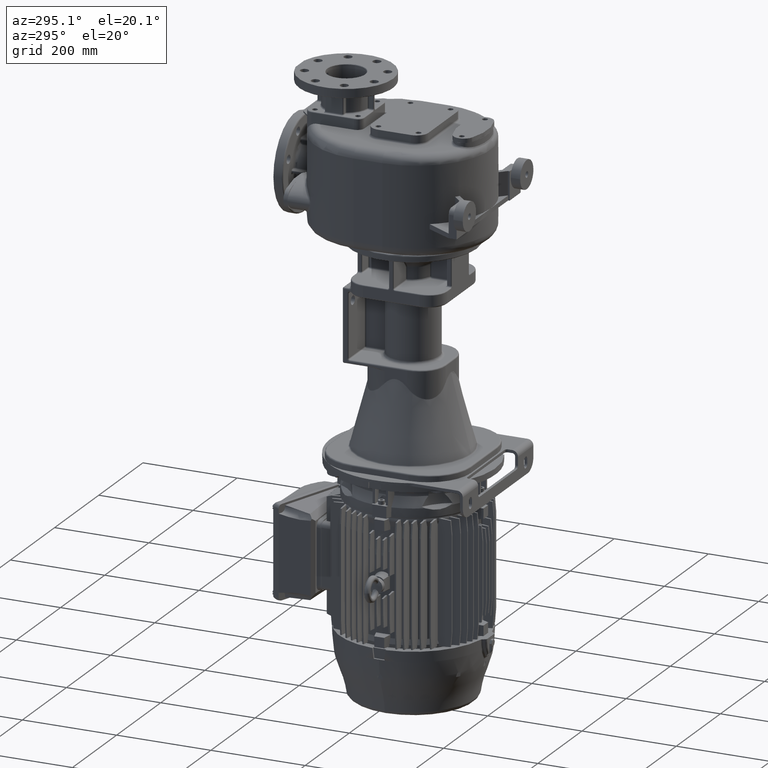
[diagram: clean part render]
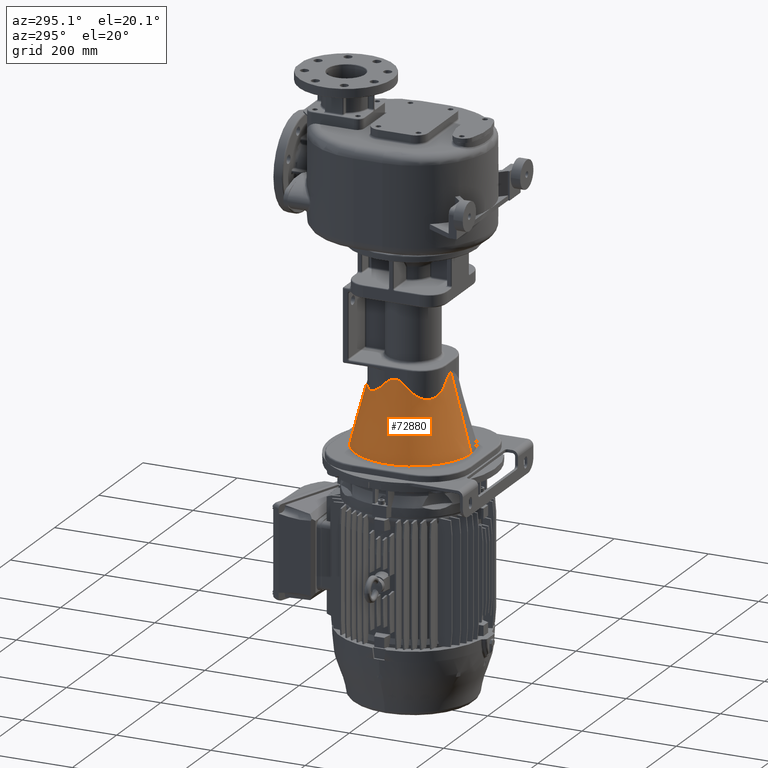
[diagram: same view with one face highlighted and labeled with its STEP entity id]
A machine part, auxiliary view. The second image highlights one B-rep face of the part: STEP entity #72880.
In plain terms, the highlighted conical surface has half-angle 15 deg.
Its self-contained STEP definition (entity closure, byte-faithful):
#14174=CARTESIAN_POINT('',(-1.898481759786E-14,1.58E2,-5.362764571353E2));
#14175=DIRECTION('',(0.E0,0.E0,1.E0));
#14176=DIRECTION('',(0.E0,1.E0,0.E0));
#14177=AXIS2_PLACEMENT_3D('',#14174,#14175,#14176);
#14199=CARTESIAN_POINT('',(-2.319506396795E1,2.382162628892E2,
-3.900399315816E2));
#14200=CARTESIAN_POINT('',(-2.288359843524E1,2.382133862913E2,
-3.897067289652E2));
#14201=CARTESIAN_POINT('',(-2.226863818762E1,2.382077949752E2,
-3.890611301452E2));
#14202=CARTESIAN_POINT('',(-2.137324140061E1,2.381999076037E2,
-3.881557259198E2));
#14203=CARTESIAN_POINT('',(-2.050004827563E1,2.381924639235E2,
-3.873058945816E2));
#14204=CARTESIAN_POINT('',(-1.964856931572E1,2.381854481215E2,
-3.865090249327E2));
#14205=CARTESIAN_POINT('',(-1.881811140830E1,2.381788423423E2,
-3.857623363366E2));
#14206=CARTESIAN_POINT('',(-1.800717068037E1,2.381726229245E2,
-3.850625046679E2));
#14207=CARTESIAN_POINT('',(-1.721497222698E1,2.381667727279E2,
-3.844070239507E2));
#14208=CARTESIAN_POINT('',(-1.644044440832E1,2.381612729392E2,
-3.837932733923E2));
#14209=CARTESIAN_POINT('',(-1.568268036622E1,2.381561068390E2,
-3.832189200329E2));
#14210=CARTESIAN_POINT('',(-1.494077587742E1,2.381512583241E2,
-3.826817647559E2));
#14211=CARTESIAN_POINT('',(-1.421386435068E1,2.381467122225E2,
-3.821797665888E2));
#14212=CARTESIAN_POINT('',(-1.350111279407E1,2.381424542442E2,
-3.817110299790E2));
#14213=CARTESIAN_POINT('',(-1.280171576460E1,2.381384709455E2,
-3.812737936328E2));
#14214=CARTESIAN_POINT('',(-1.211489612808E1,2.381347497236E2,
-3.808664241492E2));
#14215=CARTESIAN_POINT('',(-1.143990248715E1,2.381312788052E2,
-3.804874079932E2));
#14216=CARTESIAN_POINT('',(-1.077600792648E1,2.381280471918E2,
-3.801353446267E2));
#14217=CARTESIAN_POINT('',(-1.012250753635E1,2.381250446008E2,
-3.798089394529E2));
#14218=CARTESIAN_POINT('',(-9.478717047004E0,2.381222614602E2,
-3.795069980713E2));
#14219=CARTESIAN_POINT('',(-8.843971320528E0,2.381196888903E2,
-3.792284208210E2));
#14220=CARTESIAN_POINT('',(-8.217622980454E0,2.381173186852E2,
-3.789721977943E2));
#14221=CARTESIAN_POINT('',(-7.599041007339E0,2.381151433015E2,
-3.787374042576E2));
#14222=CARTESIAN_POINT('',(-6.987610053464E0,2.381131558013E2,
-3.785231965037E2));
#14223=CARTESIAN_POINT('',(-6.382728527639E0,2.381113498234E2,
-3.783288077016E2));
#14224=CARTESIAN_POINT('',(-5.783807710785E0,2.381097195894E2,
-3.781535446081E2));
#14225=CARTESIAN_POINT('',(-5.190269569580E0,2.381082598860E2,
-3.779967841122E2));
#14226=CARTESIAN_POINT('',(-4.601547002465E0,2.381069660589E2,
-3.778579709856E2));
#14227=CARTESIAN_POINT('',(-4.017084441945E0,2.381058339966E2,
-3.777366151512E2));
#14228=CARTESIAN_POINT('',(-3.436319602494E0,2.381048601029E2,
-3.776322874809E2));
#14229=CARTESIAN_POINT('',(-2.858749675769E0,2.381040413066E2,
-3.775446265706E2));
#14230=CARTESIAN_POINT('',(-2.283741555911E0,2.381033748430E2,
-3.774733127190E2));
#14231=CARTESIAN_POINT('',(-1.710935328616E0,2.381028588049E2,
-3.774181163803E2));
#14232=CARTESIAN_POINT('',(-1.139637366500E0,2.381024912630E2,
-3.773788219682E2));
#14233=CARTESIAN_POINT('',(-5.691455433550E-1,2.381022712380E2,
-3.773553004476E2));
#14234=CARTESIAN_POINT('',(-1.896066888669E-1,2.381022225310E2,
-3.773500950132E2));
#14235=CARTESIAN_POINT('',(-3.750284373163E-14,2.381022225205E2,
-3.773500949365E2));
#14237=CARTESIAN_POINT('',(-8.021626288916E1,1.811950639680E2,
-3.900399315817E2));
#14238=CARTESIAN_POINT('',(-8.021999475137E1,1.815991386036E2,
-3.904722062734E2));
#14239=CARTESIAN_POINT('',(-8.021874098262E1,1.824025072191E2,
-3.913206516273E2));
#14240=CARTESIAN_POINT('',(-8.019169096466E1,1.835915514832E2,
-3.925448786536E2));
#14241=CARTESIAN_POINT('',(-8.014043502414E1,1.847648923943E2,
-3.937225575458E2));
#14242=CARTESIAN_POINT('',(-8.006591372383E1,1.859221126280E2,
-3.948547530877E2));
#14243=CARTESIAN_POINT('',(-7.996906092865E1,1.870629094875E2,
-3.959426080158E2));
#14244=CARTESIAN_POINT('',(-7.985076686371E1,1.881872409590E2,
-3.969874556058E2));
#14245=CARTESIAN_POINT('',(-7.971190654323E1,1.892949614296E2,
-3.979904709308E2));
#14246=CARTESIAN_POINT('',(-7.955332194693E1,1.903860279218E2,
-3.989528692945E2));
#14247=CARTESIAN_POINT('',(-7.937582728284E1,1.914604184036E2,
-3.998758287319E2));
#14248=CARTESIAN_POINT('',(-7.918020743302E1,1.925181457721E2,
-4.007605048759E2));
#14249=CARTESIAN_POINT('',(-7.896721672202E1,1.935592564187E2,
-4.016080298810E2));
#14250=CARTESIAN_POINT('',(-7.873757912815E1,1.945838246107E2,
-4.024195085420E2));
#14251=CARTESIAN_POINT('',(-7.849198753309E1,1.955919522879E2,
-4.031960188631E2));
#14252=CARTESIAN_POINT('',(-7.823110376669E1,1.965837655055E2,
-4.039386098971E2));
#14253=CARTESIAN_POINT('',(-7.795555850643E1,1.975594129254E2,
-4.046483018131E2));
#14254=CARTESIAN_POINT('',(-7.766595128989E1,1.985190636491E2,
-4.053260850308E2));
#14255=CARTESIAN_POINT('',(-7.736285062766E1,1.994629052158E2,
-4.059729196012E2));
#14256=CARTESIAN_POINT('',(-7.704679418406E1,2.003911417136E2,
-4.065897347049E2));
#14257=CARTESIAN_POINT('',(-7.671828912981E1,2.013039916542E2,
-4.071774279835E2));
#14258=CARTESIAN_POINT('',(-7.637781260497E1,2.022016860136E2,
-4.077368651744E2));
#14259=CARTESIAN_POINT('',(-7.602581202268E1,2.030844669726E2,
-4.082688802583E2));
#14260=CARTESIAN_POINT('',(-7.566270553545E1,2.039525862448E2,
-4.087742751848E2));
#14261=CARTESIAN_POINT('',(-7.528888254091E1,2.048063035476E2,
-4.092538197483E2));
#14262=CARTESIAN_POINT('',(-7.490470419167E1,2.056458851990E2,
-4.097082515238E2));
#14263=CARTESIAN_POINT('',(-7.451050416814E1,2.064716023528E2,
-4.101382756973E2));
#14264=CARTESIAN_POINT('',(-7.410658931007E1,2.072837297805E2,
-4.105445652939E2));
#14265=CARTESIAN_POINT('',(-7.369324007978E1,2.080825449547E2,
-4.109277613753E2));
#14266=CARTESIAN_POINT('',(-7.327071123717E1,2.088683267991E2,
-4.112884730981E2));
#14267=CARTESIAN_POINT('',(-7.283923248650E1,2.096413546020E2,
-4.116272778687E2));
#14268=CARTESIAN_POINT('',(-7.239900906018E1,2.104019070709E2,
-4.119447214972E2));
#14269=CARTESIAN_POINT('',(-7.195022273367E1,2.111502608655E2,
-4.122413183860E2));
#14270=CARTESIAN_POINT('',(-7.149303232423E1,2.118866900134E2,
-4.125175519192E2));
#14271=CARTESIAN_POINT('',(-7.102757426105E1,2.126114651239E2,
-4.127738745976E2));
#14272=CARTESIAN_POINT('',(-7.055396319336E1,2.133248526369E2,
-4.130107082967E2));
#14273=CARTESIAN_POINT('',(-7.007229264585E1,2.140271140120E2,
-4.132284444684E2));
#14274=CARTESIAN_POINT('',(-6.958263580989E1,2.147185047501E2,
-4.134274442559E2));
#14275=CARTESIAN_POINT('',(-6.908504620454E1,2.153992738217E2,
-4.136080390797E2));
#14276=CARTESIAN_POINT('',(-6.857955829681E1,2.160696629492E2,
-4.137705307193E2));
#14277=CARTESIAN_POINT('',(-6.806618784281E1,2.167299062769E2,
-4.139151914908E2));
#14278=CARTESIAN_POINT('',(-6.754493259091E1,2.173802295998E2,
-4.140422644003E2));
#14279=CARTESIAN_POINT('',(-6.701577296307E1,2.180208496597E2,
-4.141519633128E2));
#14280=CARTESIAN_POINT('',(-6.647867249737E1,2.186519737237E2,
-4.142444731146E2));
#14281=CARTESIAN_POINT('',(-6.593357867287E1,2.192737988827E2,
-4.143199502163E2));
#14282=CARTESIAN_POINT('',(-6.538042319653E1,2.198865117125E2,
-4.143785224372E2));
#14283=CARTESIAN_POINT('',(-6.481912245120E1,2.204902878075E2,
-4.144202890442E2));
#14284=CARTESIAN_POINT('',(-6.424957809330E1,2.210852911747E2,
-4.144453208211E2));
#14285=CARTESIAN_POINT('',(-6.367167767166E1,2.216716736184E2,
-4.144536601243E2));
#14286=CARTESIAN_POINT('',(-6.308529513272E1,2.222495742511E2,
-4.144453209345E2));
#14287=CARTESIAN_POINT('',(-6.249029148922E1,2.228191189817E2,
-4.144202892519E2));
#14288=CARTESIAN_POINT('',(-6.188651487526E1,2.233804203052E2,
-4.143785227047E2));
#14289=CARTESIAN_POINT('',(-6.127380142482E1,2.239335764177E2,
-4.143199504999E2));
#14290=CARTESIAN_POINT('',(-6.065197570906E1,2.244786707867E2,
-4.142444733834E2));
#14291=CARTESIAN_POINT('',(-6.002085108892E1,2.250157717696E2,
-4.141519635453E2));
#14292=CARTESIAN_POINT('',(-5.938023054358E1,2.255449318268E2,
-4.140422645767E2));
#14293=CARTESIAN_POINT('',(-5.872990670252E1,2.260661875115E2,
-4.139151915840E2));
#14294=CARTESIAN_POINT('',(-5.806966279401E1,2.265795584206E2,
-4.137705306891E2));
#14295=CARTESIAN_POINT('',(-5.739927310853E1,2.270850467374E2,
-4.136080389013E2));
#14296=CARTESIAN_POINT('',(-5.671850355743E1,2.275826366713E2,
-4.134274439287E2));
#14297=CARTESIAN_POINT('',(-5.602711234452E1,2.280722938113E2,
-4.132284439732E2));
#14298=CARTESIAN_POINT('',(-5.532485051909E1,2.285539646257E2,
-4.130107076195E2));
#14299=CARTESIAN_POINT('',(-5.461146248572E1,2.290275759875E2,
-4.127738736970E2));
#14300=CARTESIAN_POINT('',(-5.388668686926E1,2.294930343128E2,
-4.125175507766E2));
#14301=CARTESIAN_POINT('',(-5.315025726996E1,2.299502249305E2,
-4.122413170017E2));
#14302=CARTESIAN_POINT('',(-5.240190303337E1,2.303990114421E2,
-4.119447198577E2));
#14303=CARTESIAN_POINT('',(-5.164135011419E1,2.308392350402E2,
-4.116272759508E2));
#14304=CARTESIAN_POINT('',(-5.086832184648E1,2.312707139536E2,
-4.112884708793E2));
#14305=CARTESIAN_POINT('',(-5.008253957228E1,2.316932429215E2,
-4.109277588510E2));
#14306=CARTESIAN_POINT('',(-4.928372402950E1,2.321065922298E2,
-4.105445624777E2));
#14307=CARTESIAN_POINT('',(-4.847159627376E1,2.325105071324E2,
-4.101382725954E2));
#14308=CARTESIAN_POINT('',(-4.764587880689E1,2.329047071812E2,
-4.097082481309E2));
#14309=CARTESIAN_POINT('',(-4.680629688037E1,2.332888855270E2,
-4.092538160727E2));
#14310=CARTESIAN_POINT('',(-4.595257936008E1,2.336627084832E2,
-4.087742712478E2));
#14311=CARTESIAN_POINT('',(-4.508445991861E1,2.340258149046E2,
-4.082688760799E2));
#14312=CARTESIAN_POINT('',(-4.420167882855E1,2.343778154001E2,
-4.077368607707E2));
#14313=CARTESIAN_POINT('',(-4.330398438563E1,2.347182918158E2,
-4.071774233787E2));
#14314=CARTESIAN_POINT('',(-4.239113441321E1,2.350467967399E2,
-4.065897299289E2));
#14315=CARTESIAN_POINT('',(-4.146289791124E1,2.353628530435E2,
-4.059729146708E2));
#14316=CARTESIAN_POINT('',(-4.051905637518E1,2.356659535544E2,
-4.053260799685E2));
#14317=CARTESIAN_POINT('',(-3.955940577378E1,2.359555605939E2,
-4.046482966851E2));
#14318=CARTESIAN_POINT('',(-3.858375853649E1,2.362311056656E2,
-4.039386047516E2));
#14319=CARTESIAN_POINT('',(-3.759194551381E1,2.364919892473E2,
-4.031960137163E2));
#14320=CARTESIAN_POINT('',(-3.658381806420E1,2.367375806569E2,
-4.024195034262E2));
#14321=CARTESIAN_POINT('',(-3.555925023669E1,2.369672180438E2,
-4.016080249129E2));
#14322=CARTESIAN_POINT('',(-3.451814004773E1,2.371802085448E2,
-4.007605001489E2));
#14323=CARTESIAN_POINT('',(-3.346041308292E1,2.373758282111E2,
-3.998758242172E2));
#14324=CARTESIAN_POINT('',(-3.238602308430E1,2.375533226942E2,
-3.989528650794E2));
#14325=CARTESIAN_POINT('',(-3.129495724671E1,2.377119071047E2,
-3.979904671871E2));
#14326=CARTESIAN_POINT('',(-3.018723745919E1,2.378507672620E2,
-3.969874523891E2));
#14327=CARTESIAN_POINT('',(-2.906290674209E1,2.379690611850E2,
-3.959426054254E2));
#14328=CARTESIAN_POINT('',(-2.792211030136E1,2.380659138960E2,
-3.948547508389E2));
#14329=CARTESIAN_POINT('',(-2.676489032510E1,2.381404351324E2,
-3.937225554906E2));
#14330=CARTESIAN_POINT('',(-2.559155011324E1,2.381916910058E2,
-3.925448772561E2));
#14331=CARTESIAN_POINT('',(-2.440250643312E1,2.382187409866E2,
-3.913206507998E2));
#14332=CARTESIAN_POINT('',(-2.359913833066E1,2.382199947508E2,
-3.904722059849E2));
#14333=CARTESIAN_POINT('',(-2.319506396795E1,2.382162628892E2,
-3.900399315816E2));
#14335=CARTESIAN_POINT('',(-8.021626288916E1,1.348049360321E2,
-3.900399315817E2));
#14336=CARTESIAN_POINT('',(-8.021337708996E1,1.351173980457E2,
-3.897056629505E2));
#14337=CARTESIAN_POINT('',(-8.020776865407E1,1.357342738323E2,
-3.890580940221E2));
#14338=CARTESIAN_POINT('',(-8.019985970962E1,1.366322633176E2,
-3.881502322208E2));
#14339=CARTESIAN_POINT('',(-8.019239756696E1,1.375078495189E2,
-3.872983291904E2));
#14340=CARTESIAN_POINT('',(-8.018536823674E1,1.383612767892E2,
-3.864999695796E2));
#14341=CARTESIAN_POINT('',(-8.017875137900E1,1.391935056585E2,
-3.857520825888E2));
#14342=CARTESIAN_POINT('',(-8.017252416041E1,1.400059274145E2,
-3.850514202157E2));
#14343=CARTESIAN_POINT('',(-8.016666871228E1,1.407993763352E2,
-3.843953925218E2));
#14344=CARTESIAN_POINT('',(-8.016116586727E1,1.415749344889E2,
-3.837813451027E2));
#14345=CARTESIAN_POINT('',(-8.015599864105E1,1.423335201126E2,
-3.832069118934E2));
#14346=CARTESIAN_POINT('',(-8.015115068624E1,1.430760529973E2,
-3.826698605547E2));
#14347=CARTESIAN_POINT('',(-8.014660659167E1,1.438034122586E2,
-3.821681215398E2));
#14348=CARTESIAN_POINT('',(-8.014235183219E1,1.445164437082E2,
-3.816997727583E2));
#14349=CARTESIAN_POINT('',(-8.013837274469E1,1.452159644786E2,
-3.812630292559E2));
#14350=CARTESIAN_POINT('',(-8.013465653049E1,1.459027630240E2,
-3.808562361784E2));
#14351=CARTESIAN_POINT('',(-8.013119126653E1,1.465776007042E2,
-3.804778612094E2));
#14352=CARTESIAN_POINT('',(-8.012796579074E1,1.472412142771E2,
-3.801264865762E2));
#14353=CARTESIAN_POINT('',(-8.012496966900E1,1.478943180183E2,
-3.798008021824E2));
#14354=CARTESIAN_POINT('',(-8.012219319509E1,1.485376051961E2,
-3.794995996979E2));
#14355=CARTESIAN_POINT('',(-8.011962737517E1,1.491717495290E2,
-3.792217670196E2));
#14356=CARTESIAN_POINT('',(-8.011726392488E1,1.497974066966E2,
-3.789662831902E2));
#14357=CARTESIAN_POINT('',(-8.011509519420E1,1.504152146026E2,
-3.787322138831E2));
#14358=CARTESIAN_POINT('',(-8.011311413345E1,1.510257958103E2,
-3.785187065283E2));
#14359=CARTESIAN_POINT('',(-8.011131430379E1,1.516297589223E2,
-3.783249864897E2));
#14360=CARTESIAN_POINT('',(-8.010968986696E1,1.522276997439E2,
-3.781503535738E2));
#14361=CARTESIAN_POINT('',(-8.010823557243E1,1.528202024316E2,
-3.779941788510E2));
#14362=CARTESIAN_POINT('',(-8.010694675880E1,1.534078405823E2,
-3.778559018586E2));
#14363=CARTESIAN_POINT('',(-8.010581922861E1,1.539911777434E2,
-3.777350277208E2));
#14364=CARTESIAN_POINT('',(-8.010484929848E1,1.545707693603E2,
-3.776311248865E2));
#14365=CARTESIAN_POINT('',(-8.010403381357E1,1.551471637988E2,
-3.775438232905E2));
#14366=CARTESIAN_POINT('',(-8.010337013943E1,1.557209033432E2,
-3.774728126871E2));
#14367=CARTESIAN_POINT('',(-8.010285615574E1,1.562925251901E2,
-3.774178412505E2));
#14368=CARTESIAN_POINT('',(-8.010249025446E1,1.568625623614E2,
-3.773787144484E2));
#14369=CARTESIAN_POINT('',(-8.010227120782E1,1.574315446236E2,
-3.773552936624E2));
#14370=CARTESIAN_POINT('',(-8.010219827448E1,1.579999999012E2,
-3.773474959356E2));
#14371=CARTESIAN_POINT('',(-8.010227120786E1,1.585684551787E2,
-3.773552936573E2));
#14372=CARTESIAN_POINT('',(-8.010249025448E1,1.591374374406E2,
-3.773787144380E2));
#14373=CARTESIAN_POINT('',(-8.010285615557E1,1.597074746115E2,
-3.774178412341E2));
#14374=CARTESIAN_POINT('',(-8.010337013910E1,1.602790964577E2,
-3.774728126648E2));
#14375=CARTESIAN_POINT('',(-8.010403381324E1,1.608528360014E2,
-3.775438232627E2));
#14376=CARTESIAN_POINT('',(-8.010484929819E1,1.614292304387E2,
-3.776311248533E2));
#14377=CARTESIAN_POINT('',(-8.010581922833E1,1.620088220543E2,
-3.777350276820E2));
#14378=CARTESIAN_POINT('',(-8.010694675848E1,1.625921592138E2,
-3.778559018139E2));
#14379=CARTESIAN_POINT('',(-8.010823557191E1,1.631797973632E2,
-3.779941787997E2));
#14380=CARTESIAN_POINT('',(-8.010968986633E1,1.637723000492E2,
-3.781503535160E2));
#14381=CARTESIAN_POINT('',(-8.011131430316E1,1.643702408687E2,
-3.783249864255E2));
#14382=CARTESIAN_POINT('',(-8.011311413282E1,1.649742039783E2,
-3.785187064575E2));
#14383=CARTESIAN_POINT('',(-8.011509519353E1,1.655847851834E2,
-3.787322138053E2));
#14384=CARTESIAN_POINT('',(-8.011726392413E1,1.662025930866E2,
-3.789662831051E2));
#14385=CARTESIAN_POINT('',(-8.011962737427E1,1.668282502517E2,
-3.792217669267E2));
#14386=CARTESIAN_POINT('',(-8.012219319414E1,1.674623945816E2,
-3.794995995970E2));
#14387=CARTESIAN_POINT('',(-8.012496966801E1,1.681056817560E2,
-3.798008020733E2));
#14388=CARTESIAN_POINT('',(-8.012796578967E1,1.687587854934E2,
-3.801264864583E2));
#14389=CARTESIAN_POINT('',(-8.013119126535E1,1.694223990624E2,
-3.804778610822E2));
#14390=CARTESIAN_POINT('',(-8.013465652918E1,1.700972367387E2,
-3.808562360413E2));
#14391=CARTESIAN_POINT('',(-8.013837274336E1,1.707840352799E2,
-3.812630291090E2));
#14392=CARTESIAN_POINT('',(-8.014235183084E1,1.714835560456E2,
-3.816997726009E2));
#14393=CARTESIAN_POINT('',(-8.014660659021E1,1.721965874896E2,
-3.821681213706E2));
#14394=CARTESIAN_POINT('',(-8.015115068458E1,1.729239467456E2,
-3.826698603730E2));
#14395=CARTESIAN_POINT('',(-8.015599863917E1,1.736664796271E2,
-3.832069117003E2));
#14396=CARTESIAN_POINT('',(-8.016116586524E1,1.744250652477E2,
-3.837813448979E2));
#14397=CARTESIAN_POINT('',(-8.016666871044E1,1.752006233922E2,
-3.843953923020E2));
#14398=CARTESIAN_POINT('',(-8.017252415838E1,1.759940722887E2,
-3.850514199655E2));
#14399=CARTESIAN_POINT('',(-8.017875137715E1,1.768064940619E2,
-3.857520823445E2));
#14400=CARTESIAN_POINT('',(-8.018536823382E1,1.776387228629E2,
-3.864999692590E2));
#14401=CARTESIAN_POINT('',(-8.019239756507E1,1.784921502826E2,
-3.872983290008E2));
#14402=CARTESIAN_POINT('',(-8.019985970512E1,1.793677362291E2,
-3.881502317716E2));
#14403=CARTESIAN_POINT('',(-8.020776865E1,1.802657257542E2,-3.890580935917E2));
#14404=CARTESIAN_POINT('',(-8.021337708847E1,1.808826017835E2,
-3.897056627684E2));
#14405=CARTESIAN_POINT('',(-8.021626288916E1,1.811950639680E2,
-3.900399315817E2));
#14407=CARTESIAN_POINT('',(-2.319506396795E1,7.778373711082E1,
-3.900399315816E2));
#14408=CARTESIAN_POINT('',(-2.359913855122E1,7.778000524915E1,
-3.904722062173E2));
#14409=CARTESIAN_POINT('',(-2.440250705362E1,7.778125901627E1,
-3.913206514540E2));
#14410=CARTESIAN_POINT('',(-2.559155114193E1,7.780830902549E1,
-3.925448783056E2));
#14411=CARTESIAN_POINT('',(-2.676489181782E1,7.785956494504E1,
-3.937225569742E2));
#14412=CARTESIAN_POINT('',(-2.792211214043E1,7.793408623973E1,
-3.948547526164E2));
#14413=CARTESIAN_POINT('',(-2.906290894038E1,7.803093901964E1,
-3.959426074994E2));
#14414=CARTESIAN_POINT('',(-3.018724053435E1,7.814923308679E1,
-3.969874552170E2));
#14415=CARTESIAN_POINT('',(-3.129496095881E1,7.828809339344E1,
-3.979904705103E2));
#14416=CARTESIAN_POINT('',(-3.238602739166E1,7.844667797039E1,
-3.989528688343E2));
#14417=CARTESIAN_POINT('',(-3.346041793317E1,7.862417263453E1,
-3.998758283327E2));
#14418=CARTESIAN_POINT('',(-3.451814536721E1,7.881979248814E1,
-4.007605045416E2));
#14419=CARTESIAN_POINT('',(-3.555925596754E1,7.903278318190E1,
-4.016080295175E2));
#14420=CARTESIAN_POINT('',(-3.658382414399E1,7.926242076239E1,
-4.024195081781E2));
#14421=CARTESIAN_POINT('',(-3.759195188163E1,7.950801236353E1,
-4.031960185552E2));
#14422=CARTESIAN_POINT('',(-3.858376513256E1,7.976889613157E1,
-4.039386096219E2));
#14423=CARTESIAN_POINT('',(-3.955941254026E1,8.004444138123E1,
-4.046483015369E2));
#14424=CARTESIAN_POINT('',(-4.051906325605E1,8.033404858771E1,
-4.053260847570E2));
#14425=CARTESIAN_POINT('',(-4.146290485217E1,8.063714925191E1,
-4.059729193559E2));
#14426=CARTESIAN_POINT('',(-4.239114136218E1,8.095320569291E1,
-4.065897344751E2));
#14427=CARTESIAN_POINT('',(-4.330399129189E1,8.128171073635E1,
-4.071774277540E2));
#14428=CARTESIAN_POINT('',(-4.420168564381E1,8.162218725123E1,
-4.077368649477E2));
#14429=CARTESIAN_POINT('',(-4.508446659685E1,8.197418782395E1,
-4.082688800356E2));
#14430=CARTESIAN_POINT('',(-4.595258585780E1,8.233729429902E1,
-4.087742749633E2));
#14431=CARTESIAN_POINT('',(-4.680630315684E1,8.271111728405E1,
-4.092538195331E2));
#14432=CARTESIAN_POINT('',(-4.764588482412E1,8.309529563302E1,
-4.097082513248E2));
#14433=CARTESIAN_POINT('',(-4.847160199510E1,8.348949565758E1,
-4.101382755145E2));
#14434=CARTESIAN_POINT('',(-4.928372942115E1,8.389341050775E1,
-4.105445651176E2));
#14435=CARTESIAN_POINT('',(-5.008254460362E1,8.430675973487E1,
-4.109277612106E2));
#14436=CARTESIAN_POINT('',(-5.086832648974E1,8.472928859273E1,
-4.112884729605E2));
#14437=CARTESIAN_POINT('',(-5.164135434379E1,8.516076736660E1,
-4.116272777582E2));
#14438=CARTESIAN_POINT('',(-5.240190682596E1,8.560099079542E1,
-4.119447213978E2));
#14439=CARTESIAN_POINT('',(-5.315026060444E1,8.604977710740E1,
-4.122413182845E2));
#14440=CARTESIAN_POINT('',(-5.388668972761E1,8.650696749546E1,
-4.125175518148E2));
#14441=CARTESIAN_POINT('',(-5.461146485237E1,8.697242556123E1,
-4.127738745052E2));
#14442=CARTESIAN_POINT('',(-5.532485238081E1,8.744603663406E1,
-4.130107082141E2));
#14443=CARTESIAN_POINT('',(-5.602711369073E1,8.792770713063E1,
-4.132284443722E2));
#14444=CARTESIAN_POINT('',(-5.671850437977E1,8.841736392448E1,
-4.134274441518E2));
#14445=CARTESIAN_POINT('',(-5.739927340147E1,8.891495348427E1,
-4.136080389712E2));
#14446=CARTESIAN_POINT('',(-5.806966255417E1,8.942044140002E1,
-4.137705306295E2));
#14447=CARTESIAN_POINT('',(-5.872990592851E1,8.993381188171E1,
-4.139151914196E2));
#14448=CARTESIAN_POINT('',(-5.938022923568E1,9.045506711323E1,
-4.140422643331E2));
#14449=CARTESIAN_POINT('',(-6.002084924956E1,9.098422669279E1,
-4.141519632485E2));
#14450=CARTESIAN_POINT('',(-6.065197334251E1,9.152132717414E1,
-4.142444730609E2));
#14451=CARTESIAN_POINT('',(-6.127379854745E1,9.206642102760E1,
-4.143199501823E2));
#14452=CARTESIAN_POINT('',(-6.188651147468E1,9.261957658453E1,
-4.143785224191E2));
#14453=CARTESIAN_POINT('',(-6.249028759465E1,9.318087734881E1,
-4.144202890309E2));
#14454=CARTESIAN_POINT('',(-6.308529089746E1,9.375042163764E1,
-4.144453208130E2));
#14455=CARTESIAN_POINT('',(-6.367167336885E1,9.432832207877E1,
-4.144536601243E2));
#14456=CARTESIAN_POINT('',(-6.424957399170E1,9.491470459990E1,
-4.144453209424E2));
#14457=CARTESIAN_POINT('',(-6.481911879586E1,9.550970831289E1,
-4.144202892644E2));
#14458=CARTESIAN_POINT('',(-6.538042010037E1,9.611348490230E1,
-4.143785227214E2));
#14459=CARTESIAN_POINT('',(-6.593357613212E1,9.672619825562E1,
-4.143199505323E2));
#14460=CARTESIAN_POINT('',(-6.647867047375E1,9.734802392774E1,
-4.142444734347E2));
#14461=CARTESIAN_POINT('',(-6.701577144125E1,9.797914851980E1,
-4.141519636066E2));
#14462=CARTESIAN_POINT('',(-6.754493154486E1,9.861976910943E1,
-4.140422646408E2));
#14463=CARTESIAN_POINT('',(-6.806618724857E1,9.927009296505E1,
-4.139151916519E2));
#14464=CARTESIAN_POINT('',(-6.857955812965E1,9.993033682699E1,
-4.137705307753E2));
#14465=CARTESIAN_POINT('',(-6.908504643849E1,1.006007264878E2,
-4.136080390057E2));
#14466=CARTESIAN_POINT('',(-6.958263641737E1,1.012814960885E2,
-4.134274440283E2));
#14467=CARTESIAN_POINT('',(-7.007229359792E1,1.019728873488E2,
-4.132284440650E2));
#14468=CARTESIAN_POINT('',(-7.055396446191E1,1.026751492378E2,
-4.130107076979E2));
#14469=CARTESIAN_POINT('',(-7.102757581826E1,1.033885372557E2,
-4.127738737849E2));
#14470=CARTESIAN_POINT('',(-7.149303414099E1,1.041133128585E2,
-4.125175508761E2));
#14471=CARTESIAN_POINT('',(-7.195022477988E1,1.048497424826E2,
-4.122413170978E2));
#14472=CARTESIAN_POINT('',(-7.239901130563E1,1.055980967350E2,
-4.119447199517E2));
#14473=CARTESIAN_POINT('',(-7.283923490082E1,1.063586496408E2,
-4.116272760557E2));
#14474=CARTESIAN_POINT('',(-7.327071379107E1,1.071316778580E2,
-4.112884710107E2));
#14475=CARTESIAN_POINT('',(-7.369324274375E1,1.079174600910E2,
-4.109277590090E2));
#14476=CARTESIAN_POINT('',(-7.410659205481E1,1.087162756255E2,
-4.105445626470E2));
#14477=CARTESIAN_POINT('',(-7.451050696484E1,1.095284033823E2,
-4.101382727711E2));
#14478=CARTESIAN_POINT('',(-7.490470701211E1,1.103541208315E2,
-4.097082483229E2));
#14479=CARTESIAN_POINT('',(-7.528888535775E1,1.111937027418E2,
-4.092538162807E2));
#14480=CARTESIAN_POINT('',(-7.566270832296E1,1.120474202654E2,
-4.087742714621E2));
#14481=CARTESIAN_POINT('',(-7.602581475605E1,1.129155397176E2,
-4.082688762956E2));
#14482=CARTESIAN_POINT('',(-7.637781526075E1,1.137983208131E2,
-4.077368609904E2));
#14483=CARTESIAN_POINT('',(-7.671829168607E1,1.146960152631E2,
-4.071774236012E2));
#14484=CARTESIAN_POINT('',(-7.704679662063E1,1.156088652461E2,
-4.065897301517E2));
#14485=CARTESIAN_POINT('',(-7.736285292640E1,1.165371017352E2,
-4.059729149093E2));
#14486=CARTESIAN_POINT('',(-7.766595343500E1,1.174809432415E2,
-4.053260802355E2));
#14487=CARTESIAN_POINT('',(-7.795556048430E1,1.184405938506E2,
-4.046482969546E2));
#14488=CARTESIAN_POINT('',(-7.823110556617E1,1.194162410992E2,
-4.039386050204E2));
#14489=CARTESIAN_POINT('',(-7.849198914585E1,1.204080540874E2,
-4.031960140184E2));
#14490=CARTESIAN_POINT('',(-7.873758054903E1,1.214161814757E2,
-4.024195037849E2));
#14491=CARTESIAN_POINT('',(-7.896721794911E1,1.224407493184E2,
-4.016080252714E2));
#14492=CARTESIAN_POINT('',(-7.918020846696E1,1.234818595524E2,
-4.007605004790E2));
#14493=CARTESIAN_POINT('',(-7.937582812898E1,1.245395864499E2,
-3.998758246136E2));
#14494=CARTESIAN_POINT('',(-7.955332261189E1,1.256139763881E2,
-3.989528655374E2));
#14495=CARTESIAN_POINT('',(-7.971190704170E1,1.267050422846E2,
-3.979904676057E2));
#14496=CARTESIAN_POINT('',(-7.985076721257E1,1.278127621169E2,
-3.969874527773E2));
#14497=CARTESIAN_POINT('',(-7.996906113317E1,1.289370927092E2,
-3.959426059432E2));
#14498=CARTESIAN_POINT('',(-8.006591385943E1,1.300778892089E2,
-3.948547513122E2));
#14499=CARTESIAN_POINT('',(-8.014043510134E1,1.312351090950E2,
-3.937225560656E2));
#14500=CARTESIAN_POINT('',(-8.019169099577E1,1.324084495408E2,
-3.925448776088E2));
#14501=CARTESIAN_POINT('',(-8.021874098544E1,1.335974933962E2,
-3.913206509785E2));
#14502=CARTESIAN_POINT('',(-8.021999475134E1,1.344008616148E2,
-3.904722060433E2));
#14503=CARTESIAN_POINT('',(-8.021626288916E1,1.348049360321E2,
-3.900399315817E2));
#14505=CARTESIAN_POINT('',(2.926700974624E-14,7.789777747946E1,
-3.773500949365E2));
#14506=CARTESIAN_POINT('',(-1.896745422588E-1,7.789777746695E1,
-3.773500950281E2));
#14507=CARTESIAN_POINT('',(-5.693488262817E-1,7.789772873052E1,
-3.773553041526E2));
#14508=CARTESIAN_POINT('',(-1.140043849343E0,7.789750854580E1,
-3.773788424753E2));
#14509=CARTESIAN_POINT('',(-1.711542665281E0,7.789714074411E1,
-3.774181647001E2));
#14510=CARTESIAN_POINT('',(-2.284547715063E0,7.789662434279E1,
-3.774733997592E2));
#14511=CARTESIAN_POINT('',(-2.859751028898E0,7.789595741809E1,
-3.775447629125E2));
#14512=CARTESIAN_POINT('',(-3.437512051466E0,7.789513806620E1,
-3.776324833850E2));
#14513=CARTESIAN_POINT('',(-4.018462860028E0,7.789416352798E1,
-3.777368804291E2));
#14514=CARTESIAN_POINT('',(-4.603105374705E0,7.789303073531E1,
-3.778583149265E2));
#14515=CARTESIAN_POINT('',(-5.192000970462E0,7.789173609696E1,
-3.779972153911E2));
#14516=CARTESIAN_POINT('',(-5.785704225289E0,7.789027551007E1,
-3.781540711572E2));
#14517=CARTESIAN_POINT('',(-6.384781267920E0,7.788864432920E1,
-3.783294366120E2));
#14518=CARTESIAN_POINT('',(-6.989809093213E0,7.788683735104E1,
-3.785239338950E2));
#14519=CARTESIAN_POINT('',(-7.601375353371E0,7.788484880823E1,
-3.787382551484E2));
#14520=CARTESIAN_POINT('',(-8.220080527468E0,7.788267235191E1,
-3.789731659564E2));
#14521=CARTESIAN_POINT('',(-8.846538777199E0,7.788030105571E1,
-3.792295086177E2));
#14522=CARTESIAN_POINT('',(-9.481379892467E0,7.787772739239E1,
-3.795082062738E2));
#14523=CARTESIAN_POINT('',(-1.012524996619E1,7.787494317363E1,
-3.798102670498E2));
#14524=CARTESIAN_POINT('',(-1.077881278587E1,7.787193953881E1,
-3.801367886125E2));
#14525=CARTESIAN_POINT('',(-1.144275120052E1,7.786870693650E1,
-3.804889631363E2));
#14526=CARTESIAN_POINT('',(-1.211776862096E1,7.786523510673E1,
-3.808680827355E2));
#14527=CARTESIAN_POINT('',(-1.280459038310E1,7.786151307523E1,
-3.812755451877E2));
#14528=CARTESIAN_POINT('',(-1.350396618464E1,7.785752909839E1,
-3.817128609268E2));
#14529=CARTESIAN_POINT('',(-1.421667139167E1,7.785327060413E1,
-3.821816599320E2));
#14530=CARTESIAN_POINT('',(-1.494350957811E1,7.784872418214E1,
-3.826836997046E2));
#14531=CARTESIAN_POINT('',(-1.568531172838E1,7.784387557851E1,
-3.832208715733E2));
#14532=CARTESIAN_POINT('',(-1.644294238147E1,7.783870966002E1,
-3.837952118929E2));
#14533=CARTESIAN_POINT('',(-1.721730339440E1,7.783321036626E1,
-3.844089145250E2));
#14534=CARTESIAN_POINT('',(-1.800929944554E1,7.782736102514E1,
-3.850643068707E2));
#14535=CARTESIAN_POINT('',(-1.881999944979E1,7.782114287832E1,
-3.857640032673E2));
#14536=CARTESIAN_POINT('',(-1.965017538097E1,7.781453884193E1,
-3.865105024535E2));
#14537=CARTESIAN_POINT('',(-2.050132968844E1,7.780752530049E1,
-3.873071223088E2));
#14538=CARTESIAN_POINT('',(-2.137414882244E1,7.780008449413E1,
-3.881566314375E2));
#14539=CARTESIAN_POINT('',(-2.226912468560E1,7.779220062777E1,
-3.890616373333E2));
#14540=CARTESIAN_POINT('',(-2.288376610013E1,7.778661216006E1,
-3.897069083329E2));
#14541=CARTESIAN_POINT('',(-2.319506396795E1,7.778373711082E1,
-3.900399315816E2));
#14543=DIRECTION('',(0.E0,2.588190451061E-1,9.659258262881E-1));
#14544=VECTOR('',#14543,1.645326772238E2);
#14545=CARTESIAN_POINT('',(0.E0,3.531358707165E1,-5.362764571353E2));
#14546=LINE('',#14545,#14544);
#14583=CARTESIAN_POINT('',(2.926700974624E-14,7.789777747946E1,
-3.773500949365E2));
#14891=DIRECTION('',(0.E0,-2.588190451061E-1,9.659258262881E-1));
#14892=VECTOR('',#14891,1.645326772238E2);
#14893=CARTESIAN_POINT('',(-7.030587247454E-14,2.806864129284E2,
-5.362764571353E2));
#14894=LINE('',#14893,#14892);
#14895=CARTESIAN_POINT('',(-1.898481759786E-14,1.58E2,-5.362764571353E2));
#14896=DIRECTION('',(0.E0,0.E0,1.E0));
#14897=DIRECTION('',(-2.376209689192E-1,-9.713579541703E-1,0.E0));
#14898=AXIS2_PLACEMENT_3D('',#14895,#14896,#14897);
#50661=VERTEX_POINT('',#14199);
#50662=VERTEX_POINT('',#14235);
#50672=VERTEX_POINT('',#14583);
#50674=VERTEX_POINT('',#14541);
#50677=VERTEX_POINT('',#14335);
#50678=VERTEX_POINT('',#14405);
#50679=CARTESIAN_POINT('',(-7.030587247454E-14,2.806864129284E2,
-5.362764571353E2));
#50680=VERTEX_POINT('',#50679);
#50687=CARTESIAN_POINT('',(-2.915286431326E1,3.882757693343E1,
-5.362764571353E2));
#50688=VERTEX_POINT('',#50687);
#50689=CARTESIAN_POINT('',(-1.187939024026E-14,3.531358707165E1,
-5.362764571353E2));
#50690=VERTEX_POINT('',#50689);
#72856=CARTESIAN_POINT('',(-1.898481759786E-14,1.58E2,-4.568132760358E2));
#72857=DIRECTION('',(0.E0,0.E0,-1.E0));
#72858=DIRECTION('',(0.E0,-1.E0,0.E0));
#72859=AXIS2_PLACEMENT_3D('',#72856,#72857,#72858);
#72860=CONICAL_SURFACE('',#72859,1.013943177247E2,1.5E1);
#72862=ORIENTED_EDGE('',*,*,#72861,.F.);
#72864=ORIENTED_EDGE('',*,*,#72863,.F.);
#72865=ORIENTED_EDGE('',*,*,#72844,.F.);
#72867=ORIENTED_EDGE('',*,*,#72866,.T.);
#72869=ORIENTED_EDGE('',*,*,#72868,.F.);
#72871=ORIENTED_EDGE('',*,*,#72870,.F.);
#72873=ORIENTED_EDGE('',*,*,#72872,.F.);
#72875=ORIENTED_EDGE('',*,*,#72874,.F.);
#72877=ORIENTED_EDGE('',*,*,#72876,.F.);
#72878=EDGE_LOOP('',(#72862,#72864,#72865,#72867,#72869,#72871,#72873,#72875,
#72877));
#72879=FACE_OUTER_BOUND('',#72878,.F.);
#72880=ADVANCED_FACE('',(#72879),#72860,.T.);
#14178=CIRCLE('',#14177,1.226864129284E2);
#14236=B_SPLINE_CURVE_WITH_KNOTS('',3,(#14199,#14200,#14201,#14202,#14203,
#14204,#14205,#14206,#14207,#14208,#14209,#14210,#14211,#14212,#14213,#14214,
#14215,#14216,#14217,#14218,#14219,#14220,#14221,#14222,#14223,#14224,#14225,
#14226,#14227,#14228,#14229,#14230,#14231,#14232,#14233,#14234,#14235),
.UNSPECIFIED.,.F.,.F.,(4,1,1,1,1,1,1,1,1,1,1,1,1,1,1,1,1,1,1,1,1,1,1,1,1,1,1,1,
1,1,1,1,1,1,4),(0.E0,2.941176470588E-2,5.882352941176E-2,8.823529411765E-2,
1.176470588235E-1,1.470588235294E-1,1.764705882353E-1,2.058823529412E-1,
2.352941176471E-1,2.647058823529E-1,2.941176470588E-1,3.235294117647E-1,
3.529411764706E-1,3.823529411765E-1,4.117647058824E-1,4.411764705882E-1,
4.705882352941E-1,5.E-1,5.294117647059E-1,5.588235294118E-1,5.882352941176E-1,
6.176470588235E-1,6.470588235294E-1,6.764705882353E-1,7.058823529412E-1,
7.352941176471E-1,7.647058823529E-1,7.941176470588E-1,8.235294117647E-1,
8.529411764706E-1,8.823529411765E-1,9.117647058824E-1,9.411764705882E-1,
9.705882352941E-1,1.E0),.UNSPECIFIED.);
#14334=B_SPLINE_CURVE_WITH_KNOTS('',3,(#14237,#14238,#14239,#14240,#14241,
#14242,#14243,#14244,#14245,#14246,#14247,#14248,#14249,#14250,#14251,#14252,
#14253,#14254,#14255,#14256,#14257,#14258,#14259,#14260,#14261,#14262,#14263,
#14264,#14265,#14266,#14267,#14268,#14269,#14270,#14271,#14272,#14273,#14274,
#14275,#14276,#14277,#14278,#14279,#14280,#14281,#14282,#14283,#14284,#14285,
#14286,#14287,#14288,#14289,#14290,#14291,#14292,#14293,#14294,#14295,#14296,
#14297,#14298,#14299,#14300,#14301,#14302,#14303,#14304,#14305,#14306,#14307,
#14308,#14309,#14310,#14311,#14312,#14313,#14314,#14315,#14316,#14317,#14318,
#14319,#14320,#14321,#14322,#14323,#14324,#14325,#14326,#14327,#14328,#14329,
#14330,#14331,#14332,#14333),.UNSPECIFIED.,.F.,.F.,(4,1,1,1,1,1,1,1,1,1,1,1,1,1,
1,1,1,1,1,1,1,1,1,1,1,1,1,1,1,1,1,1,1,1,1,1,1,1,1,1,1,1,1,1,1,1,1,1,1,1,1,1,1,1,
1,1,1,1,1,1,1,1,1,1,1,1,1,1,1,1,1,1,1,1,1,1,1,1,1,1,1,1,1,1,1,1,1,1,1,1,1,1,1,1,
4),(0.E0,1.063829787234E-2,2.127659574468E-2,3.191489361702E-2,
4.255319148936E-2,5.319148936170E-2,6.382978723404E-2,7.446808510638E-2,
8.510638297872E-2,9.574468085106E-2,1.063829787234E-1,1.170212765957E-1,
1.276595744681E-1,1.382978723404E-1,1.489361702128E-1,1.595744680851E-1,
1.702127659574E-1,1.808510638298E-1,1.914893617021E-1,2.021276595745E-1,
2.127659574468E-1,2.234042553191E-1,2.340425531915E-1,2.446808510638E-1,
2.553191489362E-1,2.659574468085E-1,2.765957446809E-1,2.872340425532E-1,
2.978723404255E-1,3.085106382979E-1,3.191489361702E-1,3.297872340426E-1,
3.404255319149E-1,3.510638297872E-1,3.617021276596E-1,3.723404255319E-1,
3.829787234043E-1,3.936170212766E-1,4.042553191489E-1,4.148936170213E-1,
4.255319148936E-1,4.361702127660E-1,4.468085106383E-1,4.574468085106E-1,
4.680851063830E-1,4.787234042553E-1,4.893617021277E-1,5.E-1,5.106382978723E-1,
5.212765957447E-1,5.319148936170E-1,5.425531914894E-1,5.531914893617E-1,
5.638297872340E-1,5.744680851064E-1,5.851063829787E-1,5.957446808511E-1,
6.063829787234E-1,6.170212765957E-1,6.276595744681E-1,6.382978723404E-1,
6.489361702128E-1,6.595744680851E-1,6.702127659574E-1,6.808510638298E-1,
6.914893617021E-1,7.021276595745E-1,7.127659574468E-1,7.234042553191E-1,
7.340425531915E-1,7.446808510638E-1,7.553191489362E-1,7.659574468085E-1,
7.765957446809E-1,7.872340425532E-1,7.978723404255E-1,8.085106382979E-1,
8.191489361702E-1,8.297872340426E-1,8.404255319149E-1,8.510638297872E-1,
8.617021276596E-1,8.723404255319E-1,8.829787234043E-1,8.936170212766E-1,
9.042553191489E-1,9.148936170213E-1,9.255319148936E-1,9.361702127660E-1,
9.468085106383E-1,9.574468085106E-1,9.680851063830E-1,9.787234042553E-1,
9.893617021277E-1,1.E0),.UNSPECIFIED.);
#14406=B_SPLINE_CURVE_WITH_KNOTS('',3,(#14335,#14336,#14337,#14338,#14339,
#14340,#14341,#14342,#14343,#14344,#14345,#14346,#14347,#14348,#14349,#14350,
#14351,#14352,#14353,#14354,#14355,#14356,#14357,#14358,#14359,#14360,#14361,
#14362,#14363,#14364,#14365,#14366,#14367,#14368,#14369,#14370,#14371,#14372,
#14373,#14374,#14375,#14376,#14377,#14378,#14379,#14380,#14381,#14382,#14383,
#14384,#14385,#14386,#14387,#14388,#14389,#14390,#14391,#14392,#14393,#14394,
#14395,#14396,#14397,#14398,#14399,#14400,#14401,#14402,#14403,#14404,#14405),
.UNSPECIFIED.,.F.,.F.,(4,1,1,1,1,1,1,1,1,1,1,1,1,1,1,1,1,1,1,1,1,1,1,1,1,1,1,1,
1,1,1,1,1,1,1,1,1,1,1,1,1,1,1,1,1,1,1,1,1,1,1,1,1,1,1,1,1,1,1,1,1,1,1,1,1,1,1,1,
4),(0.E0,1.470588235294E-2,2.941176470588E-2,4.411764705882E-2,
5.882352941176E-2,7.352941176471E-2,8.823529411765E-2,1.029411764706E-1,
1.176470588235E-1,1.323529411765E-1,1.470588235294E-1,1.617647058824E-1,
1.764705882353E-1,1.911764705882E-1,2.058823529412E-1,2.205882352941E-1,
2.352941176471E-1,2.5E-1,2.647058823529E-1,2.794117647059E-1,2.941176470588E-1,
3.088235294118E-1,3.235294117647E-1,3.382352941176E-1,3.529411764706E-1,
3.676470588235E-1,3.823529411765E-1,3.970588235294E-1,4.117647058824E-1,
4.264705882353E-1,4.411764705882E-1,4.558823529412E-1,4.705882352941E-1,
4.852941176471E-1,5.E-1,5.147058823529E-1,5.294117647059E-1,5.441176470588E-1,
5.588235294118E-1,5.735294117647E-1,5.882352941176E-1,6.029411764706E-1,
6.176470588235E-1,6.323529411765E-1,6.470588235294E-1,6.617647058824E-1,
6.764705882353E-1,6.911764705882E-1,7.058823529412E-1,7.205882352941E-1,
7.352941176471E-1,7.5E-1,7.647058823529E-1,7.794117647059E-1,7.941176470588E-1,
8.088235294118E-1,8.235294117647E-1,8.382352941176E-1,8.529411764706E-1,
8.676470588235E-1,8.823529411765E-1,8.970588235294E-1,9.117647058824E-1,
9.264705882353E-1,9.411764705882E-1,9.558823529412E-1,9.705882352941E-1,
9.852941176471E-1,1.E0),.UNSPECIFIED.);
#14504=B_SPLINE_CURVE_WITH_KNOTS('',3,(#14407,#14408,#14409,#14410,#14411,
#14412,#14413,#14414,#14415,#14416,#14417,#14418,#14419,#14420,#14421,#14422,
#14423,#14424,#14425,#14426,#14427,#14428,#14429,#14430,#14431,#14432,#14433,
#14434,#14435,#14436,#14437,#14438,#14439,#14440,#14441,#14442,#14443,#14444,
#14445,#14446,#14447,#14448,#14449,#14450,#14451,#14452,#14453,#14454,#14455,
#14456,#14457,#14458,#14459,#14460,#14461,#14462,#14463,#14464,#14465,#14466,
#14467,#14468,#14469,#14470,#14471,#14472,#14473,#14474,#14475,#14476,#14477,
#14478,#14479,#14480,#14481,#14482,#14483,#14484,#14485,#14486,#14487,#14488,
#14489,#14490,#14491,#14492,#14493,#14494,#14495,#14496,#14497,#14498,#14499,
#14500,#14501,#14502,#14503),.UNSPECIFIED.,.F.,.F.,(4,1,1,1,1,1,1,1,1,1,1,1,1,1,
1,1,1,1,1,1,1,1,1,1,1,1,1,1,1,1,1,1,1,1,1,1,1,1,1,1,1,1,1,1,1,1,1,1,1,1,1,1,1,1,
1,1,1,1,1,1,1,1,1,1,1,1,1,1,1,1,1,1,1,1,1,1,1,1,1,1,1,1,1,1,1,1,1,1,1,1,1,1,1,1,
4),(0.E0,1.063829787234E-2,2.127659574468E-2,3.191489361702E-2,
4.255319148936E-2,5.319148936170E-2,6.382978723404E-2,7.446808510638E-2,
8.510638297872E-2,9.574468085106E-2,1.063829787234E-1,1.170212765957E-1,
1.276595744681E-1,1.382978723404E-1,1.489361702128E-1,1.595744680851E-1,
1.702127659574E-1,1.808510638298E-1,1.914893617021E-1,2.021276595745E-1,
2.127659574468E-1,2.234042553191E-1,2.340425531915E-1,2.446808510638E-1,
2.553191489362E-1,2.659574468085E-1,2.765957446809E-1,2.872340425532E-1,
2.978723404255E-1,3.085106382979E-1,3.191489361702E-1,3.297872340426E-1,
3.404255319149E-1,3.510638297872E-1,3.617021276596E-1,3.723404255319E-1,
3.829787234043E-1,3.936170212766E-1,4.042553191489E-1,4.148936170213E-1,
4.255319148936E-1,4.361702127660E-1,4.468085106383E-1,4.574468085106E-1,
4.680851063830E-1,4.787234042553E-1,4.893617021277E-1,5.E-1,5.106382978723E-1,
5.212765957447E-1,5.319148936170E-1,5.425531914894E-1,5.531914893617E-1,
5.638297872340E-1,5.744680851064E-1,5.851063829787E-1,5.957446808511E-1,
6.063829787234E-1,6.170212765957E-1,6.276595744681E-1,6.382978723404E-1,
6.489361702128E-1,6.595744680851E-1,6.702127659574E-1,6.808510638298E-1,
6.914893617021E-1,7.021276595745E-1,7.127659574468E-1,7.234042553191E-1,
7.340425531915E-1,7.446808510638E-1,7.553191489362E-1,7.659574468085E-1,
7.765957446809E-1,7.872340425532E-1,7.978723404255E-1,8.085106382979E-1,
8.191489361702E-1,8.297872340426E-1,8.404255319149E-1,8.510638297872E-1,
8.617021276596E-1,8.723404255319E-1,8.829787234043E-1,8.936170212766E-1,
9.042553191489E-1,9.148936170213E-1,9.255319148936E-1,9.361702127660E-1,
9.468085106383E-1,9.574468085106E-1,9.680851063830E-1,9.787234042553E-1,
9.893617021277E-1,1.E0),.UNSPECIFIED.);
#14542=B_SPLINE_CURVE_WITH_KNOTS('',3,(#14505,#14506,#14507,#14508,#14509,
#14510,#14511,#14512,#14513,#14514,#14515,#14516,#14517,#14518,#14519,#14520,
#14521,#14522,#14523,#14524,#14525,#14526,#14527,#14528,#14529,#14530,#14531,
#14532,#14533,#14534,#14535,#14536,#14537,#14538,#14539,#14540,#14541),
.UNSPECIFIED.,.F.,.F.,(4,1,1,1,1,1,1,1,1,1,1,1,1,1,1,1,1,1,1,1,1,1,1,1,1,1,1,1,
1,1,1,1,1,1,4),(0.E0,2.941176470588E-2,5.882352941176E-2,8.823529411765E-2,
1.176470588235E-1,1.470588235294E-1,1.764705882353E-1,2.058823529412E-1,
2.352941176471E-1,2.647058823529E-1,2.941176470588E-1,3.235294117647E-1,
3.529411764706E-1,3.823529411765E-1,4.117647058824E-1,4.411764705882E-1,
4.705882352941E-1,5.E-1,5.294117647059E-1,5.588235294118E-1,5.882352941176E-1,
6.176470588235E-1,6.470588235294E-1,6.764705882353E-1,7.058823529412E-1,
7.352941176471E-1,7.647058823529E-1,7.941176470588E-1,8.235294117647E-1,
8.529411764706E-1,8.823529411765E-1,9.117647058824E-1,9.411764705882E-1,
9.705882352941E-1,1.E0),.UNSPECIFIED.);
#14899=CIRCLE('',#14898,1.226864129284E2);
#72844=EDGE_CURVE('',#50680,#50688,#14178,.T.);
#72861=EDGE_CURVE('',#50690,#50672,#14546,.T.);
#72863=EDGE_CURVE('',#50688,#50690,#14899,.T.);
#72866=EDGE_CURVE('',#50680,#50662,#14894,.T.);
#72868=EDGE_CURVE('',#50661,#50662,#14236,.T.);
#72870=EDGE_CURVE('',#50678,#50661,#14334,.T.);
#72872=EDGE_CURVE('',#50677,#50678,#14406,.T.);
#72874=EDGE_CURVE('',#50674,#50677,#14504,.T.);
#72876=EDGE_CURVE('',#50672,#50674,#14542,.T.);